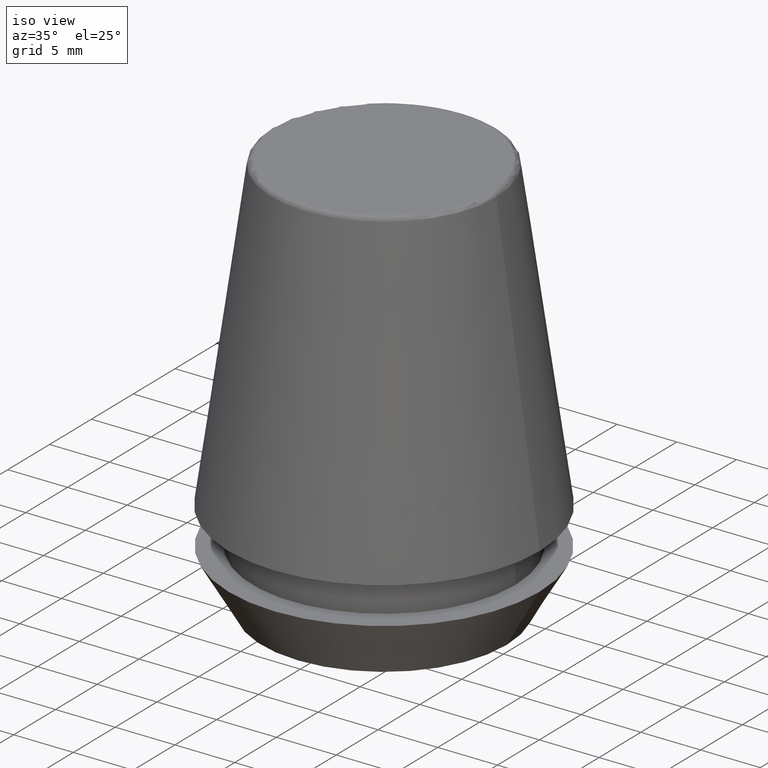
[diagram: clean part render]
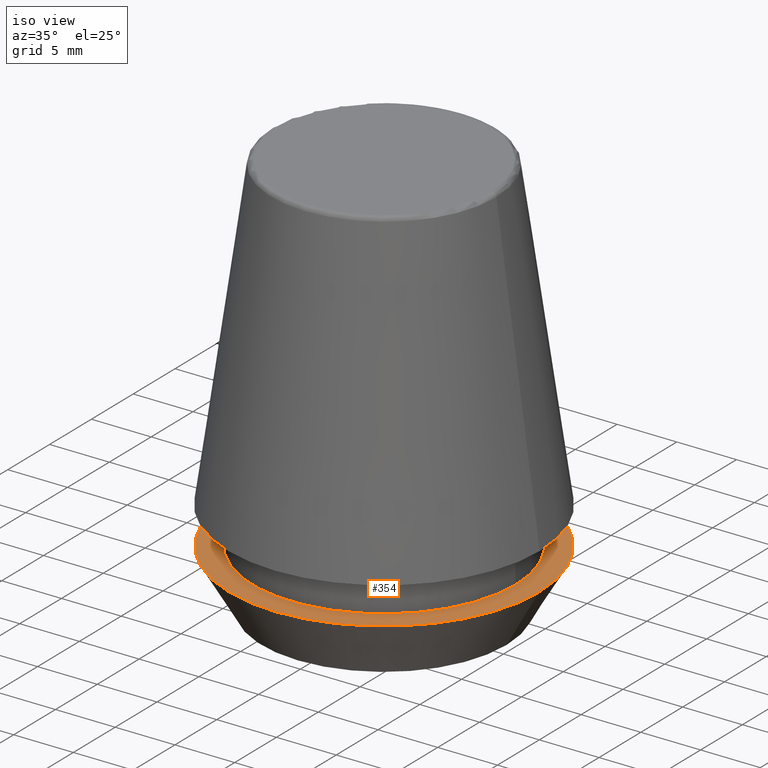
[diagram: same view with one face highlighted and labeled with its STEP entity id]
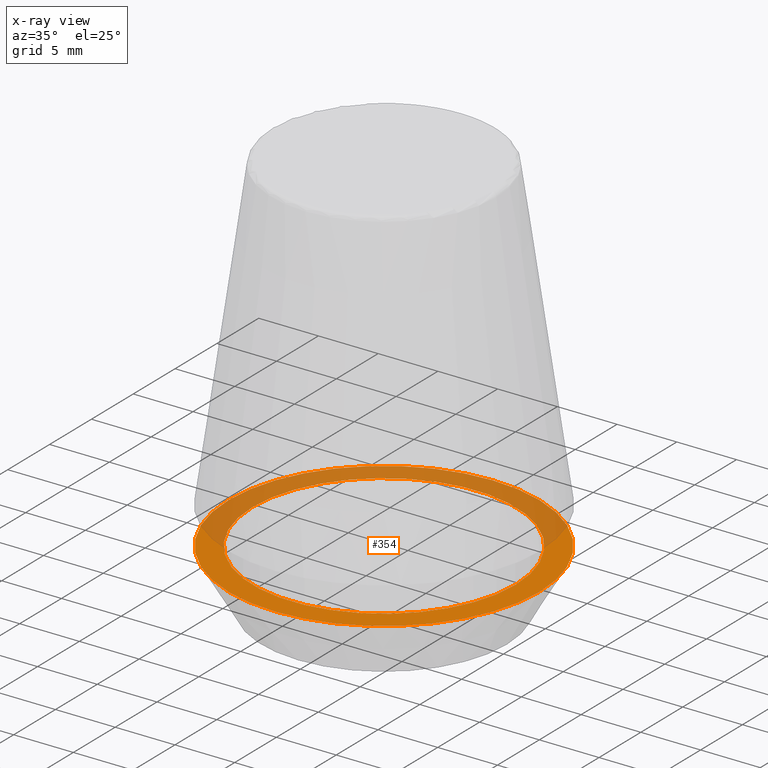
[diagram: x-ray of the same camera — body ghosted, the highlighted face saturated]
A machine part, iso view. The second image highlights one B-rep face of the part: STEP entity #354.
The next image is the same camera in x-ray: the body ghosted, the highlighted face saturated — about 46% of this face is hidden behind the body in this view.
In plain terms, the highlighted planar face has unit normal (0, 0, -1).
Its self-contained STEP definition (entity closure, byte-faithful):
#12 = AXIS2_PLACEMENT_3D ( 'NONE', #345, #176, #41 ) ;
#15 = EDGE_LOOP ( 'NONE', ( #293, #312 ) ) ;
#29 = CIRCLE ( 'NONE', #46, 11.00000000000000000 ) ;
#34 = DIRECTION ( 'NONE',  ( 0.0000000000000000000, 0.0000000000000000000, -1.000000000000000000 ) ) ;
#41 = DIRECTION ( 'NONE',  ( 1.000000000000000000, 0.0000000000000000000, 0.0000000000000000000 ) ) ;
#46 = AXIS2_PLACEMENT_3D ( 'NONE', #193, #365, #245 ) ;
#70 = FACE_OUTER_BOUND ( 'NONE', #15, .T. ) ;
#72 = DIRECTION ( 'NONE',  ( -0.0000000000000000000, -0.0000000000000000000, 1.000000000000000000 ) ) ;
#114 = DIRECTION ( 'NONE',  ( 1.000000000000000000, 0.0000000000000000000, 0.0000000000000000000 ) ) ;
#166 = EDGE_CURVE ( 'NONE', #187, #243, #351, .T. ) ;
#176 = DIRECTION ( 'NONE',  ( -0.0000000000000000000, -0.0000000000000000000, 1.000000000000000000 ) ) ;
#180 = CARTESIAN_POINT ( 'NONE',  ( 0.0000000000000000000, 0.0000000000000000000, 4.742050807568884500 ) ) ;
#187 = VERTEX_POINT ( 'NONE', #229 ) ;
#193 = CARTESIAN_POINT ( 'NONE',  ( 0.0000000000000000000, 0.0000000000000000000, 4.742050807568884500 ) ) ;
#197 = CARTESIAN_POINT ( 'NONE',  ( -11.00000000000000000, 1.347111479062088400E-015, 4.742050807568884500 ) ) ;
#198 = PLANE ( 'NONE',  #286 ) ;
#225 = EDGE_LOOP ( 'NONE', ( #235, #379 ) ) ;
#226 = AXIS2_PLACEMENT_3D ( 'NONE', #310, #72, #114 ) ;
#229 = CARTESIAN_POINT ( 'NONE',  ( 11.00000000000000000, 0.0000000000000000000, 4.742050807568884500 ) ) ;
#235 = ORIENTED_EDGE ( 'NONE', *, *, #166, .F. ) ;
#242 = CARTESIAN_POINT ( 'NONE',  ( -13.00000000000000000, 1.592040838891559100E-015, 4.742050807568884500 ) ) ;
#243 = VERTEX_POINT ( 'NONE', #197 ) ;
#245 = DIRECTION ( 'NONE',  ( 1.000000000000000000, 0.0000000000000000000, 0.0000000000000000000 ) ) ;
#254 = CIRCLE ( 'NONE', #226, 13.00000000000000000 ) ;
#258 = AXIS2_PLACEMENT_3D ( 'NONE', #180, #361, #279 ) ;
#262 = EDGE_CURVE ( 'NONE', #387, #281, #311, .T. ) ;
#279 = DIRECTION ( 'NONE',  ( 1.000000000000000000, 0.0000000000000000000, 0.0000000000000000000 ) ) ;
#281 = VERTEX_POINT ( 'NONE', #242 ) ;
#286 = AXIS2_PLACEMENT_3D ( 'NONE', #313, #34, #369 ) ;
#293 = ORIENTED_EDGE ( 'NONE', *, *, #262, .T. ) ;
#295 = EDGE_CURVE ( 'NONE', #243, #187, #29, .T. ) ;
#307 = EDGE_CURVE ( 'NONE', #281, #387, #254, .T. ) ;
#310 = CARTESIAN_POINT ( 'NONE',  ( 0.0000000000000000000, 0.0000000000000000000, 4.742050807568884500 ) ) ;
#311 = CIRCLE ( 'NONE', #258, 13.00000000000000000 ) ;
#312 = ORIENTED_EDGE ( 'NONE', *, *, #307, .T. ) ;
#313 = CARTESIAN_POINT ( 'NONE',  ( 0.0000000000000000000, 13.00000000000000000, 4.742050807568884500 ) ) ;
#345 = CARTESIAN_POINT ( 'NONE',  ( 0.0000000000000000000, 0.0000000000000000000, 4.742050807568884500 ) ) ;
#351 = CIRCLE ( 'NONE', #12, 11.00000000000000000 ) ;
#354 = ADVANCED_FACE ( 'NONE', ( #383, #70 ), #198, .F. ) ;
#359 = CARTESIAN_POINT ( 'NONE',  ( 13.00000000000000000, 0.0000000000000000000, 4.742050807568884500 ) ) ;
#361 = DIRECTION ( 'NONE',  ( -0.0000000000000000000, -0.0000000000000000000, 1.000000000000000000 ) ) ;
#365 = DIRECTION ( 'NONE',  ( -0.0000000000000000000, -0.0000000000000000000, 1.000000000000000000 ) ) ;
#369 = DIRECTION ( 'NONE',  ( -1.000000000000000000, 0.0000000000000000000, -0.0000000000000000000 ) ) ;
#379 = ORIENTED_EDGE ( 'NONE', *, *, #295, .F. ) ;
#383 = FACE_BOUND ( 'NONE', #225, .T. ) ;
#387 = VERTEX_POINT ( 'NONE', #359 ) ;